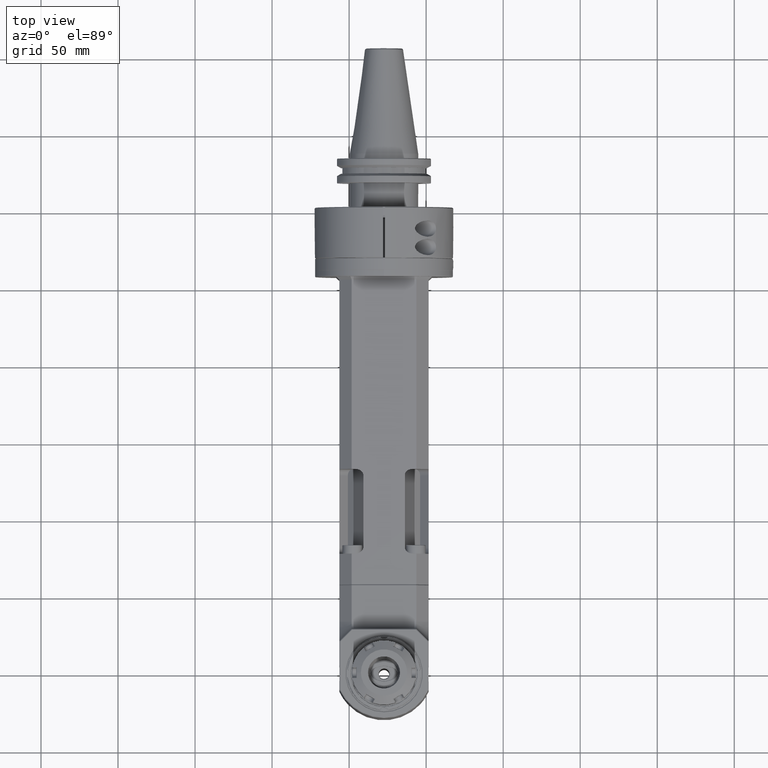
[diagram: clean part render]
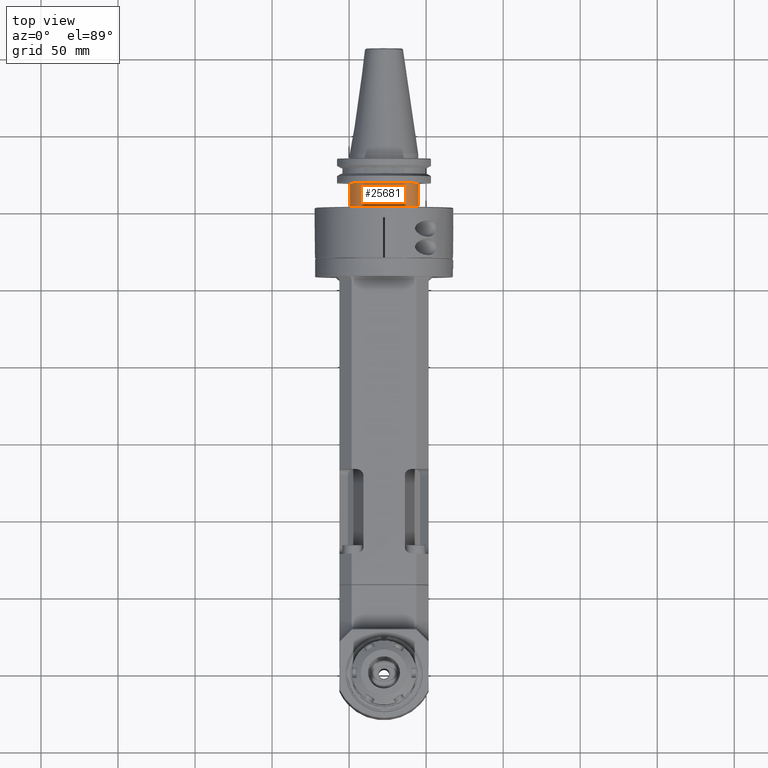
[diagram: same view with one face highlighted and labeled with its STEP entity id]
A machine part, top view. The second image highlights one B-rep face of the part: STEP entity #25681.
In plain terms, the highlighted cylindrical surface (bore or boss wall) has radius 22.225 mm, axis along (0, 1, 0).
Its self-contained STEP definition (entity closure, byte-faithful):
#3390=FACE_OUTER_BOUND('',#5028,.T.);
#5028=EDGE_LOOP('',(#23730,#23731,#23732,#23733,#23734));
#6215=CIRCLE('',#28147,22.225);
#6216=CIRCLE('',#28148,22.225);
#6217=CIRCLE('',#28150,22.225);
#8244=LINE('',#49769,#10277);
#10277=VECTOR('',#34919,22.225);
#12691=VERTEX_POINT('',#49761);
#12692=VERTEX_POINT('',#49762);
#12693=VERTEX_POINT('',#49767);
#16385=EDGE_CURVE('',#12691,#12692,#6215,.T.);
#16387=EDGE_CURVE('',#12692,#12691,#6216,.T.);
#16388=EDGE_CURVE('',#12693,#12693,#6217,.T.);
#16389=EDGE_CURVE('',#12693,#12692,#8244,.T.);
#23730=ORIENTED_EDGE('',*,*,#16388,.T.);
#23731=ORIENTED_EDGE('',*,*,#16389,.T.);
#23732=ORIENTED_EDGE('',*,*,#16387,.T.);
#23733=ORIENTED_EDGE('',*,*,#16385,.T.);
#23734=ORIENTED_EDGE('',*,*,#16389,.F.);
#24242=CYLINDRICAL_SURFACE('',#28149,22.225);
#25681=ADVANCED_FACE('',(#3390),#24242,.T.);
#28147=AXIS2_PLACEMENT_3D('',#49763,#34910,#34911);
#28148=AXIS2_PLACEMENT_3D('',#49765,#34913,#34914);
#28149=AXIS2_PLACEMENT_3D('',#49766,#34915,#34916);
#28150=AXIS2_PLACEMENT_3D('',#49768,#34917,#34918);
#34910=DIRECTION('center_axis',(0.,1.,0.));
#34911=DIRECTION('ref_axis',(1.,0.,0.));
#34913=DIRECTION('center_axis',(0.,1.,0.));
#34914=DIRECTION('ref_axis',(1.,0.,0.));
#34915=DIRECTION('center_axis',(0.,1.,0.));
#34916=DIRECTION('ref_axis',(1.,0.,0.));
#34917=DIRECTION('center_axis',(0.,-1.,0.));
#34918=DIRECTION('ref_axis',(-1.,0.,0.));
#34919=DIRECTION('',(0.,-1.,0.));
#49761=CARTESIAN_POINT('',(9.37728641497035E-14,33.5000210982556,22.225));
#49762=CARTESIAN_POINT('',(-22.225,33.5000210982556,2.72177751110499E-15));
#49763=CARTESIAN_POINT('Origin',(0.,33.5000210982556,0.));
#49765=CARTESIAN_POINT('Origin',(0.,33.5000210982556,0.));
#49766=CARTESIAN_POINT('Origin',(0.,31.25,0.));
#49767=CARTESIAN_POINT('',(-22.225,48.9,2.72177751110499E-15));
#49768=CARTESIAN_POINT('Origin',(0.,48.9,0.));
#49769=CARTESIAN_POINT('',(-22.225,31.25,2.72177751110499E-15));